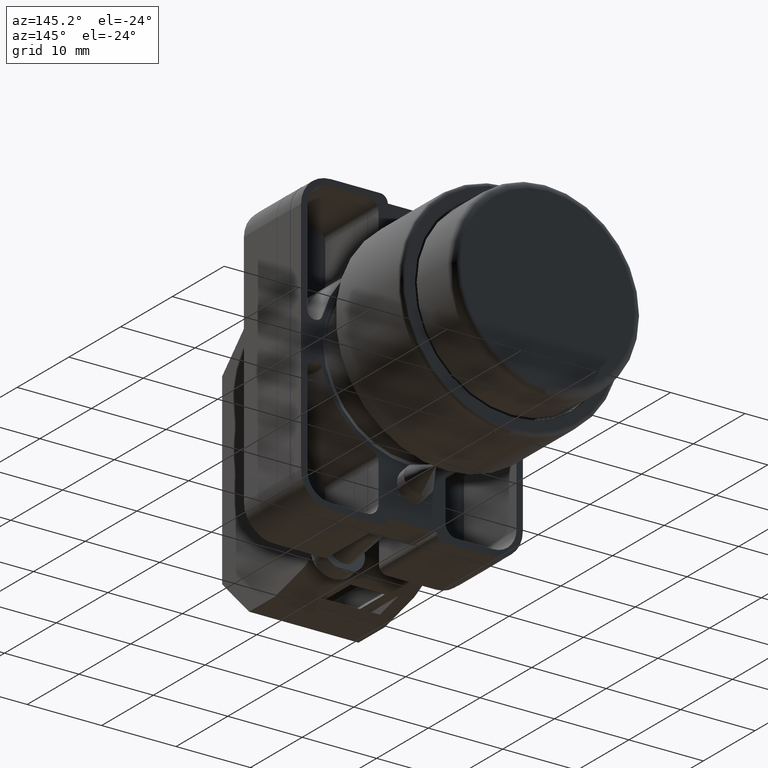
[diagram: clean part render]
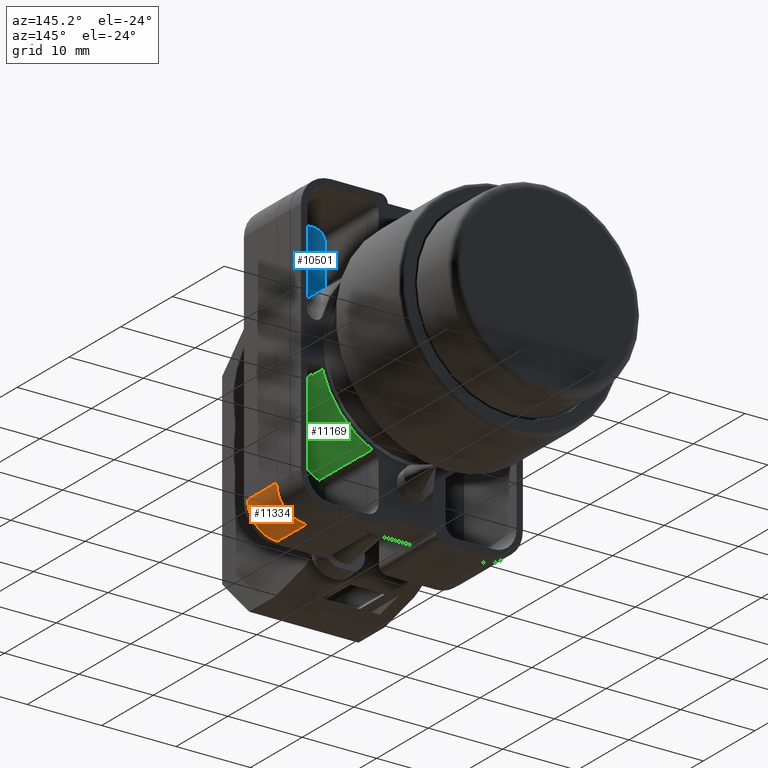
[diagram: same view with three faces highlighted in distinct colors, each labeled with its STEP entity id]
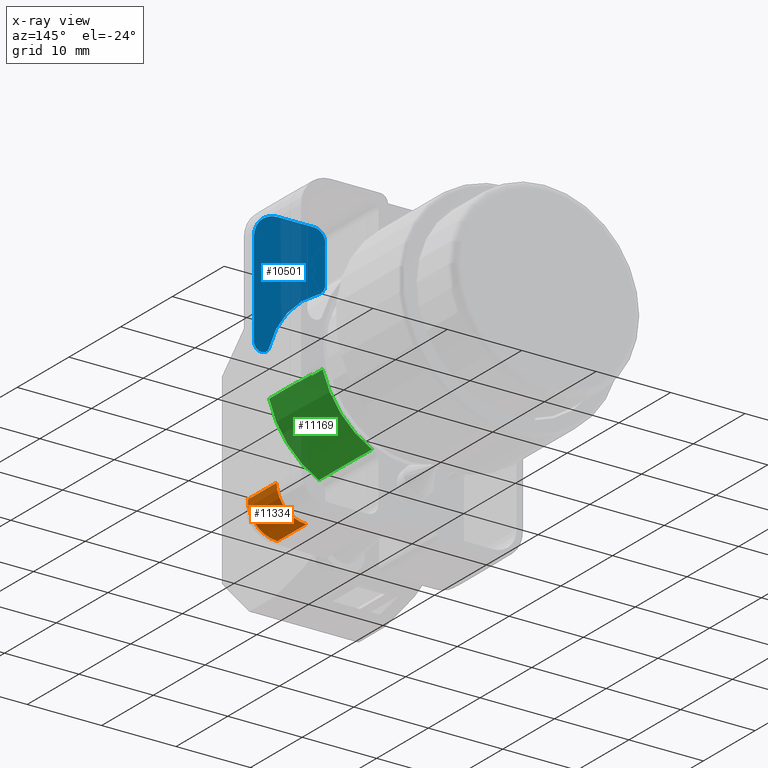
[diagram: x-ray of the same camera — body ghosted, the three highlighted faces saturated]
A machine part, auxiliary view with three faces highlighted in distinct colors.
The next image is the same camera in x-ray (body ghosted, the three faces saturated) — at least one of them is partly hidden behind the body in this view.
Their STEP definitions:

[orange] entity #11334 — the highlighted cylindrical surface (edge-blend (fillet) strip) has radius 4 mm, axis along (0, 1, 0).
#753 = CARTESIAN_POINT ( 'NONE',  ( 0.4312471367406947600, 0.6299199999999968200, -0.4035433070866141200 ) ) ;
#1749 = DIRECTION ( 'NONE',  ( -1.000000000000000000, 0.0000000000000000000, 0.0000000000000000000 ) ) ;
#2229 = AXIS2_PLACEMENT_3D ( 'NONE', #4127, #4083, #11036 ) ;
#2589 = CIRCLE ( 'NONE', #10638, 0.1574800000000025100 ) ;
#2945 = DIRECTION ( 'NONE',  ( 0.0000000000000000000, 0.0000000000000000000, -1.000000000000000000 ) ) ;
#3284 = EDGE_CURVE ( 'NONE', #8225, #11965, #5156, .T. ) ;
#3285 = DIRECTION ( 'NONE',  ( -0.0000000000000000000, -0.0000000000000000000, 1.000000000000000000 ) ) ;
#3410 = VERTEX_POINT ( 'NONE', #10307 ) ;
#3674 = ORIENTED_EDGE ( 'NONE', *, *, #3284, .F. ) ;
#3748 = CYLINDRICAL_SURFACE ( 'NONE', #2229, 0.1574800000000025100 ) ;
#3992 = ORIENTED_EDGE ( 'NONE', *, *, #4851, .F. ) ;
#4083 = DIRECTION ( 'NONE',  ( -0.0000000000000000000, -0.0000000000000000000, 1.000000000000000000 ) ) ;
#4127 = CARTESIAN_POINT ( 'NONE',  ( 0.4312471367406947600, 0.6299199999999968200, -0.4035433070866141200 ) ) ;
#4234 = CARTESIAN_POINT ( 'NONE',  ( 0.5887271367406972100, 0.6299199999999968200, -0.4035433070866141200 ) ) ;
#4433 = EDGE_LOOP ( 'NONE', ( #10557, #3674, #3992, #7054 ) ) ;
#4682 = FACE_OUTER_BOUND ( 'NONE', #4433, .T. ) ;
#4851 = EDGE_CURVE ( 'NONE', #3410, #8225, #5884, .T. ) ;
#5136 = CARTESIAN_POINT ( 'NONE',  ( 0.5887271367406972100, 0.6299199999999968200, -0.4035433070866141200 ) ) ;
#5156 = LINE ( 'NONE', #4234, #7461 ) ;
#5884 = CIRCLE ( 'NONE', #11683, 0.1574800000000025100 ) ;
#6935 = EDGE_CURVE ( 'NONE', #7843, #11965, #2589, .T. ) ;
#7054 = ORIENTED_EDGE ( 'NONE', *, *, #11052, .T. ) ;
#7461 = VECTOR ( 'NONE', #3285, 39.37007874015748100 ) ;
#7664 = CARTESIAN_POINT ( 'NONE',  ( 0.4312471367406947600, 0.7873999999999993200, -0.4035433070866141200 ) ) ;
#7682 = DIRECTION ( 'NONE',  ( 0.0000000000000000000, 0.0000000000000000000, -1.000000000000000000 ) ) ;
#7843 = VERTEX_POINT ( 'NONE', #12476 ) ;
#8225 = VERTEX_POINT ( 'NONE', #5136 ) ;
#8560 = CARTESIAN_POINT ( 'NONE',  ( 0.5887271367406972100, 0.6299199999999968200, -0.1830708661417322600 ) ) ;
#8672 = DIRECTION ( 'NONE',  ( -0.0000000000000000000, -0.0000000000000000000, 1.000000000000000000 ) ) ;
#8881 = CARTESIAN_POINT ( 'NONE',  ( 0.4312471367406947600, 0.6299199999999968200, -0.1830708661417322600 ) ) ;
#9627 = VECTOR ( 'NONE', #8672, 39.37007874015748100 ) ;
#9858 = DIRECTION ( 'NONE',  ( -1.000000000000000000, 0.0000000000000000000, 0.0000000000000000000 ) ) ;
#9929 = LINE ( 'NONE', #7664, #9627 ) ;
#10307 = CARTESIAN_POINT ( 'NONE',  ( 0.4312471367406947600, 0.7873999999999993200, -0.4035433070866141200 ) ) ;
#10557 = ORIENTED_EDGE ( 'NONE', *, *, #6935, .T. ) ;
#10638 = AXIS2_PLACEMENT_3D ( 'NONE', #8881, #2945, #9858 ) ;
#11036 = DIRECTION ( 'NONE',  ( 1.000000000000000000, 0.0000000000000000000, 0.0000000000000000000 ) ) ;
#11052 = EDGE_CURVE ( 'NONE', #3410, #7843, #9929, .T. ) ;
#11334 = ADVANCED_FACE ( 'NONE', ( #4682 ), #3748, .T. ) ;
#11683 = AXIS2_PLACEMENT_3D ( 'NONE', #753, #7682, #1749 ) ;
#11965 = VERTEX_POINT ( 'NONE', #8560 ) ;
#12476 = CARTESIAN_POINT ( 'NONE',  ( 0.4312471367406947600, 0.7873999999999993200, -0.1830708661417322600 ) ) ;

[blue] entity #10501 — the highlighted planar face has unit normal (0, -1, 0).
#30 = CARTESIAN_POINT ( 'NONE',  ( 0.4312471367406947600, -0.6299199999999968200, -0.4035433070866141200 ) ) ;
#185 = CARTESIAN_POINT ( 'NONE',  ( 0.4312471367406947600, -0.7539354999999998700, -0.4035433070866141200 ) ) ;
#807 = DIRECTION ( 'NONE',  ( -1.000000000000000000, 0.0000000000000000000, -0.0000000000000000000 ) ) ;
#841 = CIRCLE ( 'NONE', #6416, 0.4901565000000056000 ) ;
#997 = DIRECTION ( 'NONE',  ( -1.000000000000000000, 0.0000000000000000000, 0.0000000000000000000 ) ) ;
#1602 = EDGE_CURVE ( 'NONE', #5565, #8049, #10284, .T. ) ;
#1759 = EDGE_CURVE ( 'NONE', #3218, #9286, #841, .T. ) ;
#2029 = CARTESIAN_POINT ( 'NONE',  ( 0.5552626367406977600, -0.1312116170952820900, -0.4035433070866141200 ) ) ;
#2078 = CIRCLE ( 'NONE', #6755, 0.1240155000000029700 ) ;
#2164 = ORIENTED_EDGE ( 'NONE', *, *, #4426, .F. ) ;
#2401 = DIRECTION ( 'NONE',  ( 0.0000000000000000000, 0.0000000000000000000, -1.000000000000000000 ) ) ;
#2485 = CIRCLE ( 'NONE', #4438, 0.04078732000000082100 ) ;
#2564 = VERTEX_POINT ( 'NONE', #11456 ) ;
#3210 = EDGE_LOOP ( 'NONE', ( #2164, #8479, #3224, #5612, #6797, #4332, #4090, #10134 ) ) ;
#3218 = VERTEX_POINT ( 'NONE', #10052 ) ;
#3224 = ORIENTED_EDGE ( 'NONE', *, *, #4688, .F. ) ;
#3370 = DIRECTION ( 'NONE',  ( 0.0000000000000000000, 0.0000000000000000000, -1.000000000000000000 ) ) ;
#3947 = CARTESIAN_POINT ( 'NONE',  ( 0.2376145082109258100, -0.4951490858518649000, -0.4035433070866141200 ) ) ;
#4046 = CIRCLE ( 'NONE', #11289, 0.05905500000000121100 ) ;
#4061 = LINE ( 'NONE', #7415, #11625 ) ;
#4090 = ORIENTED_EDGE ( 'NONE', *, *, #12266, .F. ) ;
#4151 = CARTESIAN_POINT ( 'NONE',  ( 0.5144753167406969100, -0.1312116170952820600, -0.4035433070866141200 ) ) ;
#4157 = EDGE_CURVE ( 'NONE', #8142, #2564, #4061, .T. ) ;
#4332 = ORIENTED_EDGE ( 'NONE', *, *, #4157, .F. ) ;
#4426 = EDGE_CURVE ( 'NONE', #10327, #9286, #11476, .T. ) ;
#4438 = AXIS2_PLACEMENT_3D ( 'NONE', #4151, #11054, #5155 ) ;
#4688 = EDGE_CURVE ( 'NONE', #8049, #10947, #4046, .T. ) ;
#4940 = DIRECTION ( 'NONE',  ( -1.000000000000000000, 0.0000000000000000000, 0.0000000000000000000 ) ) ;
#5155 = DIRECTION ( 'NONE',  ( -1.000000000000000000, 0.0000000000000000000, 0.0000000000000000000 ) ) ;
#5334 = FACE_OUTER_BOUND ( 'NONE', #3210, .T. ) ;
#5565 = VERTEX_POINT ( 'NONE', #185 ) ;
#5612 = ORIENTED_EDGE ( 'NONE', *, *, #1602, .F. ) ;
#6416 = AXIS2_PLACEMENT_3D ( 'NONE', #9291, #3370, #10271 ) ;
#6602 = PLANE ( 'NONE',  #12508 ) ;
#6721 = DIRECTION ( 'NONE',  ( 0.0000000000000000000, 0.0000000000000000000, -1.000000000000000000 ) ) ;
#6736 = EDGE_CURVE ( 'NONE', #10327, #10947, #7404, .T. ) ;
#6755 = AXIS2_PLACEMENT_3D ( 'NONE', #30, #6927, #997 ) ;
#6797 = ORIENTED_EDGE ( 'NONE', *, *, #8089, .F. ) ;
#6875 = AXIS2_PLACEMENT_3D ( 'NONE', #3947, #10851, #4940 ) ;
#6927 = DIRECTION ( 'NONE',  ( 0.0000000000000000000, 0.0000000000000000000, -1.000000000000000000 ) ) ;
#7404 = LINE ( 'NONE', #12282, #10339 ) ;
#7415 = CARTESIAN_POINT ( 'NONE',  ( 0.5552626367406977600, 0.0000000000000000000, -0.4035433070866141200 ) ) ;
#7657 = VECTOR ( 'NONE', #8138, 39.37007874015748100 ) ;
#8049 = VERTEX_POINT ( 'NONE', #9820 ) ;
#8089 = EDGE_CURVE ( 'NONE', #2564, #5565, #2078, .T. ) ;
#8138 = DIRECTION ( 'NONE',  ( -1.000000000000000000, 0.0000000000000000000, 0.0000000000000000000 ) ) ;
#8142 = VERTEX_POINT ( 'NONE', #2029 ) ;
#8341 = CARTESIAN_POINT ( 'NONE',  ( 0.2376145082109257800, -0.6948804999999986800, -0.4035433070866141200 ) ) ;
#8479 = ORIENTED_EDGE ( 'NONE', *, *, #6736, .T. ) ;
#9286 = VERTEX_POINT ( 'NONE', #9293 ) ;
#9291 = CARTESIAN_POINT ( 'NONE',  ( 0.0000000000000000000, 0.0000000000000000000, -0.4035433070866141200 ) ) ;
#9293 = CARTESIAN_POINT ( 'NONE',  ( 0.2120645610914696500, -0.4419072486634879100, -0.4035433070866141200 ) ) ;
#9315 = DIRECTION ( 'NONE',  ( 0.0000000000000000000, -1.000000000000000000, 0.0000000000000000000 ) ) ;
#9336 = DIRECTION ( 'NONE',  ( -1.000000000000000000, 0.0000000000000000000, 0.0000000000000000000 ) ) ;
#9400 = DIRECTION ( 'NONE',  ( 0.0000000000000000000, -1.000000000000000000, 0.0000000000000000000 ) ) ;
#9820 = CARTESIAN_POINT ( 'NONE',  ( 0.2376145082109257800, -0.7539354999999998700, -0.4035433070866141200 ) ) ;
#10052 = CARTESIAN_POINT ( 'NONE',  ( 0.4749531138530084800, -0.1211318873525330100, -0.4035433070866141200 ) ) ;
#10134 = ORIENTED_EDGE ( 'NONE', *, *, #1759, .T. ) ;
#10271 = DIRECTION ( 'NONE',  ( -1.000000000000000000, 0.0000000000000000000, 0.0000000000000000000 ) ) ;
#10284 = LINE ( 'NONE', #12074, #7657 ) ;
#10327 = VERTEX_POINT ( 'NONE', #12318 ) ;
#10339 = VECTOR ( 'NONE', #9315, 39.37007874015748100 ) ;
#10501 = ADVANCED_FACE ( 'NONE', ( #5334 ), #6602, .F. ) ;
#10851 = DIRECTION ( 'NONE',  ( 0.0000000000000000000, 0.0000000000000000000, -1.000000000000000000 ) ) ;
#10947 = VERTEX_POINT ( 'NONE', #11442 ) ;
#11054 = DIRECTION ( 'NONE',  ( 0.0000000000000000000, 0.0000000000000000000, -1.000000000000000000 ) ) ;
#11289 = AXIS2_PLACEMENT_3D ( 'NONE', #8341, #2401, #9336 ) ;
#11442 = CARTESIAN_POINT ( 'NONE',  ( 0.1785595082109245600, -0.6948804999999986800, -0.4035433070866141200 ) ) ;
#11456 = CARTESIAN_POINT ( 'NONE',  ( 0.5552626367406977600, -0.6299199999999968200, -0.4035433070866141200 ) ) ;
#11476 = CIRCLE ( 'NONE', #6875, 0.05905500000000128000 ) ;
#11625 = VECTOR ( 'NONE', #9400, 39.37007874015748100 ) ;
#12074 = CARTESIAN_POINT ( 'NONE',  ( 0.0000000000000000000, -0.7539354999999998700, -0.4035433070866141200 ) ) ;
#12266 = EDGE_CURVE ( 'NONE', #3218, #8142, #2485, .T. ) ;
#12282 = CARTESIAN_POINT ( 'NONE',  ( 0.1785595082109245600, 0.0000000000000000000, -0.4035433070866141200 ) ) ;
#12318 = CARTESIAN_POINT ( 'NONE',  ( 0.1785595082109245600, -0.4951490858518649000, -0.4035433070866141200 ) ) ;
#12508 = AXIS2_PLACEMENT_3D ( 'NONE', #12671, #6721, #807 ) ;
#12671 = CARTESIAN_POINT ( 'NONE',  ( 0.4291330000000019300, 0.6299200000000055900, -0.4035433070866141200 ) ) ;

[green] entity #11169 — the highlighted cylindrical surface (partial cylindrical patch) has radius 12.45 mm, axis along (0, 1, 0).
#95 = CARTESIAN_POINT ( 'NONE',  ( 0.4743743620736656200, 0.1233789248593868800, -0.1830708661417322600 ) ) ;
#110 = DIRECTION ( 'NONE',  ( 0.0000000000000000000, 0.0000000000000000000, -1.000000000000000000 ) ) ;
#290 = CARTESIAN_POINT ( 'NONE',  ( 0.4730013859558147000, 0.1285421463028080200, 0.0000000000000000000 ) ) ;
#312 = ORIENTED_EDGE ( 'NONE', *, *, #2196, .F. ) ;
#378 = DIRECTION ( 'NONE',  ( -0.0000000000000000000, -0.0000000000000000000, 1.000000000000000000 ) ) ;
#420 = ORIENTED_EDGE ( 'NONE', *, *, #2175, .F. ) ;
#453 = CARTESIAN_POINT ( 'NONE',  ( 0.2108200000000012800, 0.4425023413409890400, 0.0000000000000000000 ) ) ;
#707 = VERTEX_POINT ( 'NONE', #6075 ) ;
#859 = CARTESIAN_POINT ( 'NONE',  ( 0.2120645610914711500, 0.4419072486634917900, -0.1830708661417322600 ) ) ;
#868 = EDGE_CURVE ( 'NONE', #11569, #8612, #7972, .T. ) ;
#877 = CARTESIAN_POINT ( 'NONE',  ( 0.0000000000000000000, 0.0000000000000000000, -0.08070866141732283000 ) ) ;
#901 = VERTEX_POINT ( 'NONE', #453 ) ;
#1030 = CARTESIAN_POINT ( 'NONE',  ( 0.2116896052029939000, 0.4420869886586288300, -0.08070866141732283000 ) ) ;
#1100 = DIRECTION ( 'NONE',  ( 0.0000000000000000000, 0.0000000000000000000, 1.000000000000000000 ) ) ;
#1153 = DIRECTION ( 'NONE',  ( 0.0000000000000000000, 0.0000000000000000000, 1.000000000000000000 ) ) ;
#1166 = LINE ( 'NONE', #10017, #3184 ) ;
#1216 = EDGE_LOOP ( 'NONE', ( #1668, #312, #10813, #10218, #12812, #12571, #420, #4628, #11558, #4867, #10043, #3360 ) ) ;
#1301 = DIRECTION ( 'NONE',  ( -0.0000000000000000000, -0.0000000000000000000, 1.000000000000000000 ) ) ;
#1352 = VERTEX_POINT ( 'NONE', #12611 ) ;
#1435 = CARTESIAN_POINT ( 'NONE',  ( 0.4730013859558147000, 0.1285421463028080200, -0.08070866141732283000 ) ) ;
#1534 = EDGE_CURVE ( 'NONE', #5515, #8709, #11533, .T. ) ;
#1668 = ORIENTED_EDGE ( 'NONE', *, *, #6908, .F. ) ;
#1931 = AXIS2_PLACEMENT_3D ( 'NONE', #6032, #110, #7017 ) ;
#2066 = DIRECTION ( 'NONE',  ( -0.0000000000000000000, -0.0000000000000000000, 1.000000000000000000 ) ) ;
#2103 = DIRECTION ( 'NONE',  ( -0.0000000000000000000, -0.0000000000000000000, 1.000000000000000000 ) ) ;
#2175 = EDGE_CURVE ( 'NONE', #1352, #2948, #10423, .T. ) ;
#2196 = EDGE_CURVE ( 'NONE', #5099, #9737, #2534, .T. ) ;
#2273 = VECTOR ( 'NONE', #1301, 39.37007874015748100 ) ;
#2298 = CIRCLE ( 'NONE', #8967, 0.4901565000000056000 ) ;
#2314 = DIRECTION ( 'NONE',  ( 0.0000000000000000000, 0.0000000000000000000, -1.000000000000000000 ) ) ;
#2505 = EDGE_CURVE ( 'NONE', #5099, #707, #11193, .T. ) ;
#2534 = LINE ( 'NONE', #9995, #7493 ) ;
#2948 = VERTEX_POINT ( 'NONE', #5225 ) ;
#3013 = VECTOR ( 'NONE', #2066, 39.37007874015748100 ) ;
#3184 = VECTOR ( 'NONE', #1153, 39.37007874015748100 ) ;
#3360 = ORIENTED_EDGE ( 'NONE', *, *, #9111, .T. ) ;
#3601 = CARTESIAN_POINT ( 'NONE',  ( 0.4749531138530083700, 0.1211318873525331200, -0.1830708661417322600 ) ) ;
#3757 = FACE_OUTER_BOUND ( 'NONE', #1216, .T. ) ;
#3804 = CARTESIAN_POINT ( 'NONE',  ( 0.0000000000000000000, 0.0000000000000000000, -0.08070866141732283000 ) ) ;
#3873 = CARTESIAN_POINT ( 'NONE',  ( 0.0000000000000000000, 0.0000000000000000000, 0.0000000000000000000 ) ) ;
#3973 = CARTESIAN_POINT ( 'NONE',  ( 0.2108200000000012800, 0.4425023413409890400, -0.08070866141732283000 ) ) ;
#4038 = CARTESIAN_POINT ( 'NONE',  ( 0.2116896052029944300, 0.4420869886586302200, -0.1830708661417322600 ) ) ;
#4302 = CARTESIAN_POINT ( 'NONE',  ( 0.2120645610914711500, 0.4419072486634917900, -0.4035433070866141200 ) ) ;
#4324 = CARTESIAN_POINT ( 'NONE',  ( 0.4749531138530083700, 0.1211318873525331200, -0.4035433070866141200 ) ) ;
#4397 = DIRECTION ( 'NONE',  ( -0.0000000000000000000, -0.0000000000000000000, 1.000000000000000000 ) ) ;
#4530 = VECTOR ( 'NONE', #2103, 39.37007874015748100 ) ;
#4628 = ORIENTED_EDGE ( 'NONE', *, *, #8324, .T. ) ;
#4809 = DIRECTION ( 'NONE',  ( -1.000000000000000000, 0.0000000000000000000, 0.0000000000000000000 ) ) ;
#4864 = DIRECTION ( 'NONE',  ( 1.000000000000000000, 0.0000000000000000000, 0.0000000000000000000 ) ) ;
#4867 = ORIENTED_EDGE ( 'NONE', *, *, #1534, .T. ) ;
#5099 = VERTEX_POINT ( 'NONE', #1435 ) ;
#5201 = DIRECTION ( 'NONE',  ( 0.0000000000000000000, 0.0000000000000000000, -1.000000000000000000 ) ) ;
#5225 = CARTESIAN_POINT ( 'NONE',  ( 0.4749531138530069800, 0.1211318873525327900, -0.4035433070866141200 ) ) ;
#5515 = VERTEX_POINT ( 'NONE', #4038 ) ;
#5605 = EDGE_CURVE ( 'NONE', #5515, #8619, #2298, .T. ) ;
#6032 = CARTESIAN_POINT ( 'NONE',  ( 0.0000000000000000000, 0.0000000000000000000, -0.4035433070866141200 ) ) ;
#6075 = CARTESIAN_POINT ( 'NONE',  ( 0.4743743620736656200, 0.1233789248593868800, -0.08070866141732283000 ) ) ;
#6269 = EDGE_CURVE ( 'NONE', #2948, #11569, #9094, .T. ) ;
#6458 = AXIS2_PLACEMENT_3D ( 'NONE', #877, #10721, #12742 ) ;
#6908 = EDGE_CURVE ( 'NONE', #9737, #901, #8174, .T. ) ;
#7001 = AXIS2_PLACEMENT_3D ( 'NONE', #8257, #2314, #9243 ) ;
#7014 = CARTESIAN_POINT ( 'NONE',  ( 0.2116896052029944300, 0.4420869886586302200, -0.1830708661417322600 ) ) ;
#7017 = DIRECTION ( 'NONE',  ( -1.000000000000000000, 0.0000000000000000000, 0.0000000000000000000 ) ) ;
#7051 = CIRCLE ( 'NONE', #11976, 0.4901565000000041600 ) ;
#7333 = AXIS2_PLACEMENT_3D ( 'NONE', #3873, #10759, #4864 ) ;
#7493 = VECTOR ( 'NONE', #1100, 39.37007874015748100 ) ;
#7747 = CARTESIAN_POINT ( 'NONE',  ( 0.4743743620736656200, 0.1233789248593868800, -0.1830708661417322600 ) ) ;
#7847 = LINE ( 'NONE', #4302, #2273 ) ;
#7972 = CIRCLE ( 'NONE', #11388, 0.4901565000000056000 ) ;
#8174 = CIRCLE ( 'NONE', #7333, 0.4901565000000041600 ) ;
#8257 = CARTESIAN_POINT ( 'NONE',  ( 0.0000000000000000000, 0.0000000000000000000, -0.08070866141732283000 ) ) ;
#8324 = EDGE_CURVE ( 'NONE', #1352, #8619, #7847, .T. ) ;
#8612 = VERTEX_POINT ( 'NONE', #7747 ) ;
#8619 = VERTEX_POINT ( 'NONE', #859 ) ;
#8708 = CYLINDRICAL_SURFACE ( 'NONE', #6458, 0.4901565000000041600 ) ;
#8709 = VERTEX_POINT ( 'NONE', #1030 ) ;
#8967 = AXIS2_PLACEMENT_3D ( 'NONE', #11118, #5201, #12099 ) ;
#9006 = EDGE_CURVE ( 'NONE', #8709, #9616, #7051, .T. ) ;
#9094 = LINE ( 'NONE', #4324, #11424 ) ;
#9111 = EDGE_CURVE ( 'NONE', #9616, #901, #1166, .T. ) ;
#9243 = DIRECTION ( 'NONE',  ( -1.000000000000000000, 0.0000000000000000000, 0.0000000000000000000 ) ) ;
#9616 = VERTEX_POINT ( 'NONE', #3973 ) ;
#9737 = VERTEX_POINT ( 'NONE', #290 ) ;
#9995 = CARTESIAN_POINT ( 'NONE',  ( 0.4730013859558147000, 0.1285421463028080200, -0.08070866141732283000 ) ) ;
#10017 = CARTESIAN_POINT ( 'NONE',  ( 0.2108200000000012800, 0.4425023413409890400, -0.08070866141732283000 ) ) ;
#10043 = ORIENTED_EDGE ( 'NONE', *, *, #9006, .T. ) ;
#10218 = ORIENTED_EDGE ( 'NONE', *, *, #11652, .F. ) ;
#10298 = CARTESIAN_POINT ( 'NONE',  ( 0.0000000000000000000, 0.0000000000000000000, -0.1830708661417322600 ) ) ;
#10423 = CIRCLE ( 'NONE', #1931, 0.4901565000000056000 ) ;
#10706 = DIRECTION ( 'NONE',  ( -0.0000000000000000000, -0.0000000000000000000, 1.000000000000000000 ) ) ;
#10721 = DIRECTION ( 'NONE',  ( 0.0000000000000000000, 0.0000000000000000000, 1.000000000000000000 ) ) ;
#10759 = DIRECTION ( 'NONE',  ( 0.0000000000000000000, 0.0000000000000000000, 1.000000000000000000 ) ) ;
#10813 = ORIENTED_EDGE ( 'NONE', *, *, #2505, .T. ) ;
#11118 = CARTESIAN_POINT ( 'NONE',  ( 0.0000000000000000000, 0.0000000000000000000, -0.1830708661417322600 ) ) ;
#11169 = ADVANCED_FACE ( 'NONE', ( #3757 ), #8708, .T. ) ;
#11193 = CIRCLE ( 'NONE', #7001, 0.4901565000000056000 ) ;
#11310 = DIRECTION ( 'NONE',  ( -1.000000000000000000, 0.0000000000000000000, 0.0000000000000000000 ) ) ;
#11388 = AXIS2_PLACEMENT_3D ( 'NONE', #10298, #4397, #11310 ) ;
#11424 = VECTOR ( 'NONE', #378, 39.37007874015748100 ) ;
#11533 = LINE ( 'NONE', #7014, #3013 ) ;
#11558 = ORIENTED_EDGE ( 'NONE', *, *, #5605, .F. ) ;
#11569 = VERTEX_POINT ( 'NONE', #3601 ) ;
#11652 = EDGE_CURVE ( 'NONE', #8612, #707, #12421, .T. ) ;
#11976 = AXIS2_PLACEMENT_3D ( 'NONE', #3804, #10706, #4809 ) ;
#12099 = DIRECTION ( 'NONE',  ( -1.000000000000000000, 0.0000000000000000000, 0.0000000000000000000 ) ) ;
#12421 = LINE ( 'NONE', #95, #4530 ) ;
#12571 = ORIENTED_EDGE ( 'NONE', *, *, #6269, .F. ) ;
#12611 = CARTESIAN_POINT ( 'NONE',  ( 0.2120645610914711800, 0.4419072486634919000, -0.4035433070866141200 ) ) ;
#12742 = DIRECTION ( 'NONE',  ( 1.000000000000000000, 0.0000000000000000000, 0.0000000000000000000 ) ) ;
#12812 = ORIENTED_EDGE ( 'NONE', *, *, #868, .F. ) ;